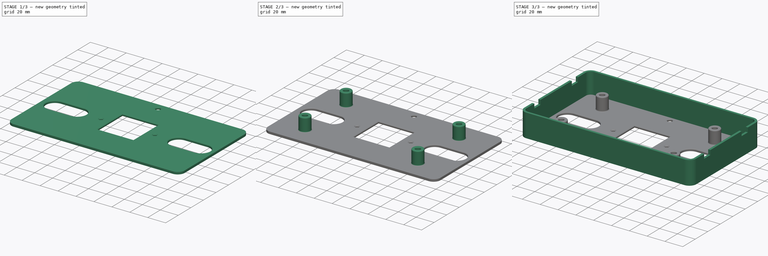
[diagram: build sequence overview — one tinted view per stage of 3, left to right]
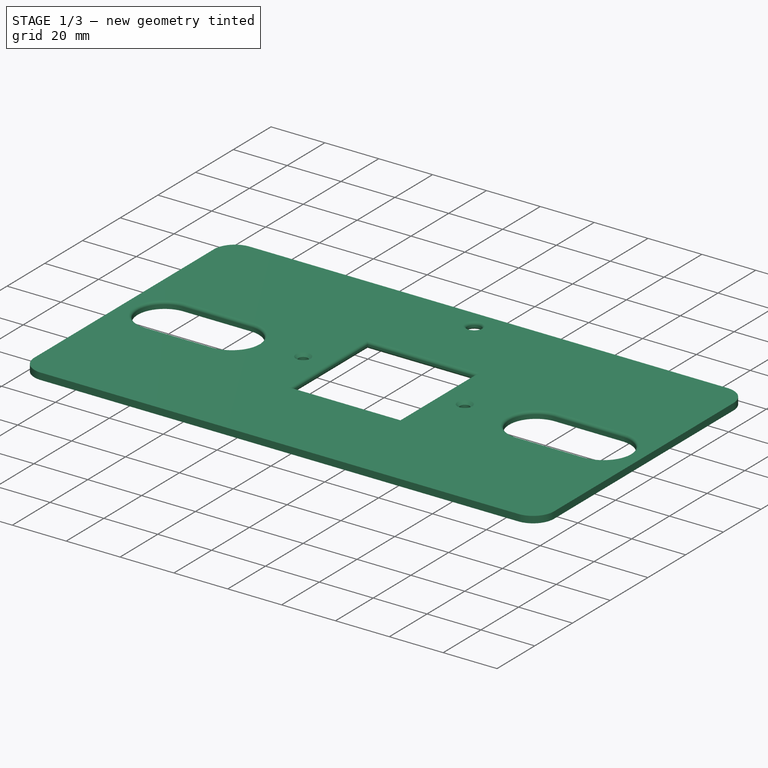
[diagram: stage 1 of 3 — iso view after this stage's code; geometry added in this stage tinted green]
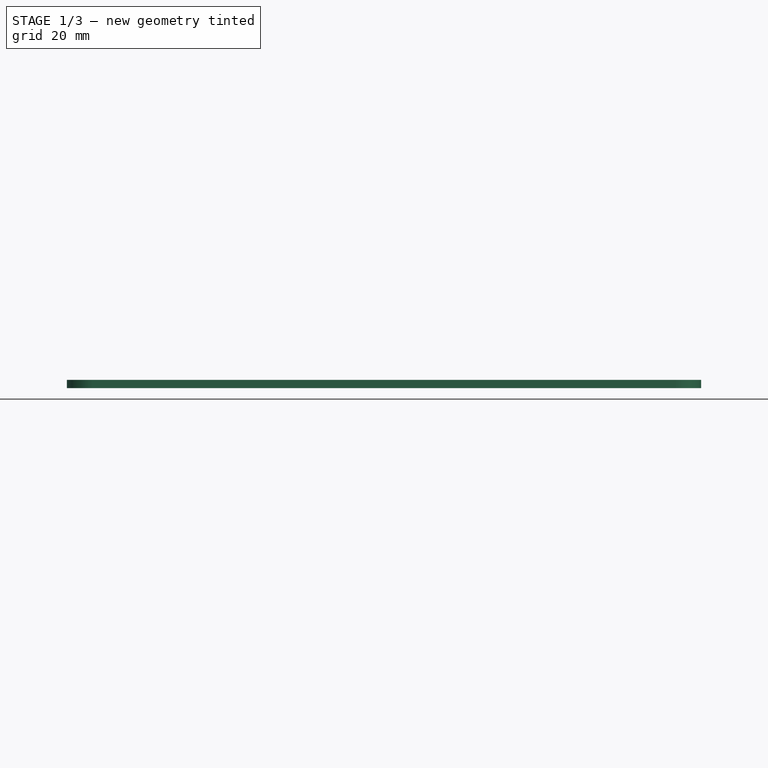
[diagram: stage 1 of 3 — front view after this stage's code; geometry added in this stage tinted green]
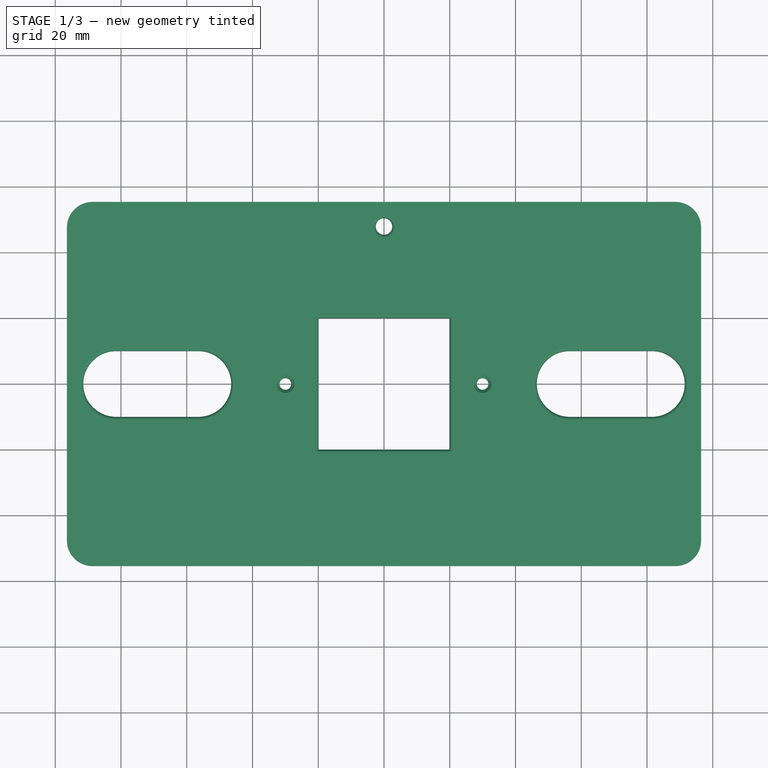
[diagram: stage 1 of 3 — top view after this stage's code; geometry added in this stage tinted green]
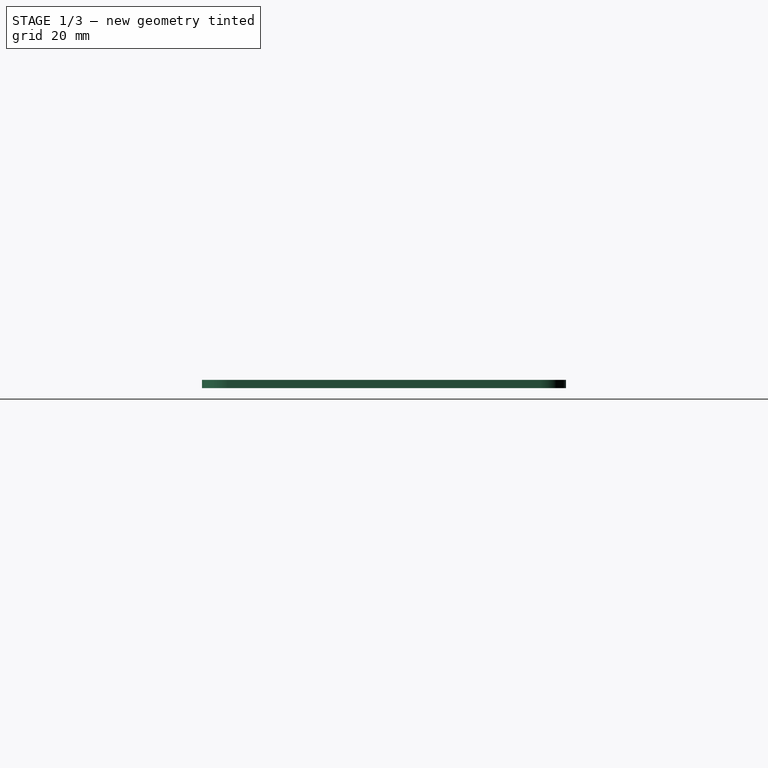
[diagram: stage 1 of 3 — right view after this stage's code; geometry added in this stage tinted green]
FCSTD DOCUMENT  (FreeCAD 1.0R39319 (Git))
Label: WaveshareTouch7Wall
License: All rights reserved
LicenseURL: https://en.wikipedia.org/wiki/All_rights_reserved
objects: Sketcher::SketchObject×5, PartDesign::Pad×3, PartDesign::Fillet×2, PartDesign::Pocket×2, PartDesign::Chamfer×1, PartDesign::Body×1
note: 35 computed .brp shape members not serialized (recipe doc carries the construction recipe); baked Part::Feature solids carry a one-line shape summary decoded from their .brp

FEATURE [Sketcher::SketchObject] Sketch  label="BasePlate"
  ArcFitTolerance = 1e-06
  AttachmentSupport = -> [XY_Plane]
  FullyConstrained = true
  MakeInternals = false
  MapMode = 5
  sketch-geometry (31):
    g0: LineSegment StartX=-96.48 StartY=47.58 StartZ=0 EndX=-96.48 EndY=-47.58 EndZ=0
    g1: LineSegment StartX=-88.68 StartY=-55.38 StartZ=0 EndX=88.68 EndY=-55.38 EndZ=0
    g2: LineSegment StartX=96.48 StartY=-47.58 StartZ=0 EndX=96.48 EndY=47.58 EndZ=0
    g3: LineSegment StartX=88.68 StartY=55.38 StartZ=0 EndX=-88.68 EndY=55.38 EndZ=0
    g4: GeomPoint [constr] X=0 Y=0 Z=0
    g5: GeomPoint [constr] X=0 Y=0 Z=0
    g6: GeomPoint [constr] X=0 Y=0 Z=0
    g7: LineSegment StartX=-20 StartY=20 StartZ=0 EndX=-20 EndY=-20 EndZ=0
    g8: LineSegment StartX=-20 StartY=-20 StartZ=0 EndX=20 EndY=-20 EndZ=0
    g9: LineSegment StartX=20 StartY=-20 StartZ=0 EndX=20 EndY=20 EndZ=0
    g10: LineSegment StartX=20 StartY=20 StartZ=0 EndX=-20 EndY=20 EndZ=0
    g11: GeomPoint [constr] X=0 Y=0 Z=0
    g12: Circle CenterX=-30 CenterY=0 CenterZ=0 NormalX=0 NormalY=0 NormalZ=1 AngleXU=0 Radius=1.75
    g13: Circle CenterX=30 CenterY=0 CenterZ=0 NormalX=0 NormalY=0 NormalZ=1 AngleXU=0 Radius=1.75
    g14: ArcOfCircle CenterX=88.68 CenterY=47.58 CenterZ=0 NormalX=0 NormalY=0 NormalZ=1 AngleXU=0 Radius=7.8 StartAngle=2e-16 EndAngle=1.5708
    g15: GeomPoint [constr] X=96.48 Y=55.38 Z=0
    g16: ArcOfCircle CenterX=88.68 CenterY=-47.58 CenterZ=0 NormalX=0 NormalY=0 NormalZ=1 AngleXU=0 Radius=7.8 StartAngle=4.71239 EndAngle=6.28319
    g17: GeomPoint [constr] X=96.48 Y=-55.38 Z=0
    g18: ArcOfCircle CenterX=-88.68 CenterY=-47.58 CenterZ=0 NormalX=0 NormalY=0 NormalZ=1 AngleXU=0 Radius=7.8 StartAngle=3.14159 EndAngle=4.71239
    g19: GeomPoint [constr] X=-96.48 Y=-55.38 Z=0
    g20: ArcOfCircle CenterX=-88.68 CenterY=47.58 CenterZ=0 NormalX=0 NormalY=0 NormalZ=1 AngleXU=0 Radius=7.8 StartAngle=1.5708 EndAngle=3.14159
    g21: GeomPoint [constr] X=-96.48 Y=55.38 Z=0
    g22: Circle CenterX=0 CenterY=47.88 CenterZ=0 NormalX=0 NormalY=0 NormalZ=1 AngleXU=0 Radius=2.5
    g23: ArcOfCircle CenterX=-81.48 CenterY=0 CenterZ=0 NormalX=0 NormalY=0 NormalZ=1 AngleXU=0 Radius=10 StartAngle=1.5708 EndAngle=4.71239
    g24: ArcOfCircle CenterX=-56.48 CenterY=0 CenterZ=0 NormalX=0 NormalY=0 NormalZ=1 AngleXU=0 Radius=10 StartAngle=4.71239 EndAngle=7.85398
    g25: LineSegment StartX=-81.48 StartY=10 StartZ=0 EndX=-56.48 EndY=10 EndZ=0
    g26: LineSegment StartX=-81.48 StartY=-10 StartZ=0 EndX=-56.48 EndY=-10 EndZ=0
    g27: ArcOfCircle CenterX=56.48 CenterY=-5e-16 CenterZ=0 NormalX=0 NormalY=0 NormalZ=1 AngleXU=0 Radius=10 StartAngle=1.5708 EndAngle=4.71239
    g28: ArcOfCircle CenterX=81.48 CenterY=0 CenterZ=0 NormalX=0 NormalY=0 NormalZ=1 AngleXU=0 Radius=10 StartAngle=4.71239 EndAngle=7.85398
    g29: LineSegment StartX=56.48 StartY=10 StartZ=0 EndX=81.48 EndY=10 EndZ=0
    g30: LineSegment StartX=56.48 StartY=-10 StartZ=0 EndX=81.48 EndY=-10 EndZ=0
  constraints (71):
    c: Vertical(g0)
    c: Vertical(g2)
    c: Horizontal(g1)
    c: Horizontal(g3)
    c: Symmetric(g17,g21,g4)
    c: Coincident(g4,g-1)
    c: DistanceX(g21,g15) = 192.96
    c: DistanceY(g17,g15) = 110.76
    c: Coincident(g5,g4)
    c: Coincident(g6,g4)
    c: Coincident(g7,g8)
    c: Coincident(g8,g9)
    c: Coincident(g9,g10)
    c: Coincident(g10,g7)
    c: Vertical(g7)
    c: Vertical(g9)
    c: Horizontal(g8)
    c: Horizontal(g10)
    c: Symmetric(g9,g7,g11)
    c: Coincident(g11,g4)
    c: DistanceX(g8,g8) = 40
    c: DistanceY(g9,g9) = 40
    c: PointOnObject(g12,g-1)
    c: PointOnObject(g13,g-1)
    c: Diameter(g13) = 3.5
    c: Diameter(g12) = 3.5
    c: Distance(g12,g-2) = 30
    c: Distance(g13,g-2) = 30
    c: PointOnObject(g15,g3)
    c: PointOnObject(g15,g2)
    c: Tangent(g3,g14) = -1.5708
    c: Tangent(g2,g14) = -1.5708
    c: PointOnObject(g17,g2)
    c: PointOnObject(g17,g1)
    c: Tangent(g2,g16) = -1.5708
    c: Tangent(g1,g16) = -1.5708
    c: PointOnObject(g19,g1)
    c: PointOnObject(g19,g0)
    c: Tangent(g1,g18) = -1.5708
    c: Tangent(g0,g18) = -1.5708
    c: PointOnObject(g21,g0)
    c: PointOnObject(g21,g3)
    c: Tangent(g0,g20) = -1.5708
    c: Tangent(g3,g20) = -1.5708
    c: Radius(g20) = 7.8
    c: Radius(g18) = 7.8
    c: Radius(g14) = 7.8
    c: Radius(g16) = 7.8
    c: PointOnObject(g22,g-2)
    c: Diameter(g22) = 5
    c: Distance(g22,g3) = 5
    c: Tangent(g23,g25) = 1.5708
    c: Tangent(g23,g26) = -1.5708
    c: Tangent(g24,g25) = 1.5708
    c: Tangent(g24,g26) = -1.5708
    c: Equal(g23,g24)
    c: Horizontal(g26)
    c: PointOnObject(g23,g-1)
    c: Tangent(g27,g29) = 1.5708
    c: Tangent(g27,g30) = -1.5708
    c: Tangent(g28,g29) = 1.5708
    c: Tangent(g28,g30) = -1.5708
    c: Equal(g27,g28)
    c: Horizontal(g30)
    c: Distance(g23,g0) = 5
    c: Distance(g28,g2) = 5
    c: DistanceX(g23,g24) = 25
    c: DistanceX(g27,g28) = 25
    c: Distance(g30,g29) = 20
    c: Distance(g26,g25) = 20
    c: PointOnObject(g28,g-1)
FEATURE [PartDesign::Pad] Pad  label="BasePlatePad"
  Direction = (0,0,1)
  Length = 2.5
  Length2 = 10
  Profile = -> Sketch
  ReferenceAxis = -> Sketch [N_Axis]
  Refine = true
  Suppressed = false
  Type = 0
FEATURE [PartDesign::Fillet] Fillet  label="BasePlateFillet"
  Base = -> Pad [Edge28,Edge31,Edge34,Edge36,Edge30,Edge27,Edge35,Edge33,Edge63,Edge62,Edge60,Edge52,Edge55,Edge58,Edge48,Edge40,Edge43,Edge46]
  BaseFeature = -> Pad
  Radius = 1
  Refine = true
  SupportTransform = false
  Suppressed = false
  UseAllEdges = false
FEATURE [PartDesign::Chamfer] Chamfer  label="BasePlateChamfer"
  Angle = 45
  Base = -> Fillet [Edge56,Edge55]
  BaseFeature = -> Fillet
  ChamferType = 0
  FlipDirection = false
  Refine = true
  Size = 1
  Size2 = 1
  SupportTransform = false
  Suppressed = false
  UseAllEdges = false
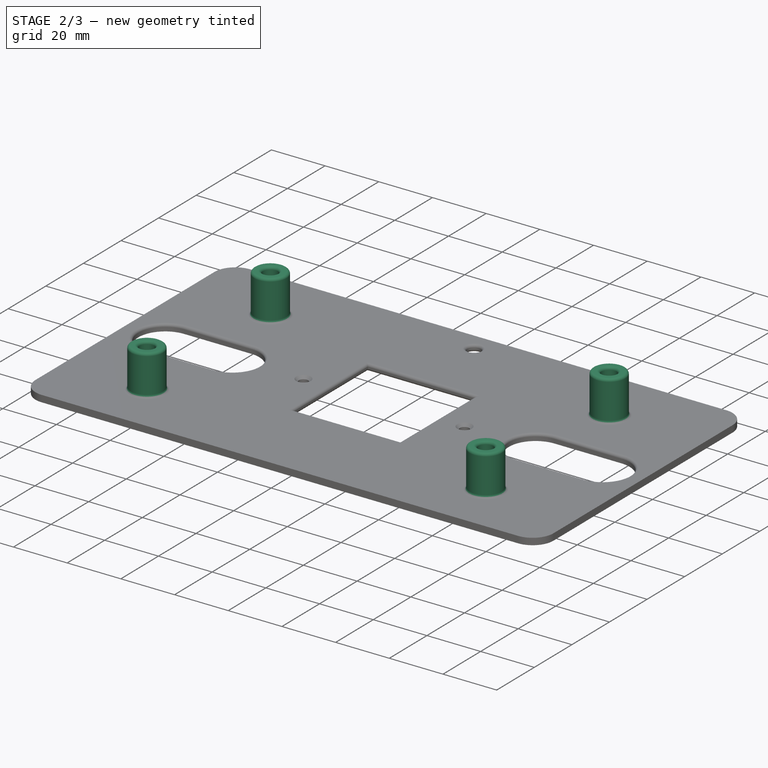
[diagram: stage 2 of 3 — iso view after this stage's code; geometry added in this stage tinted green]
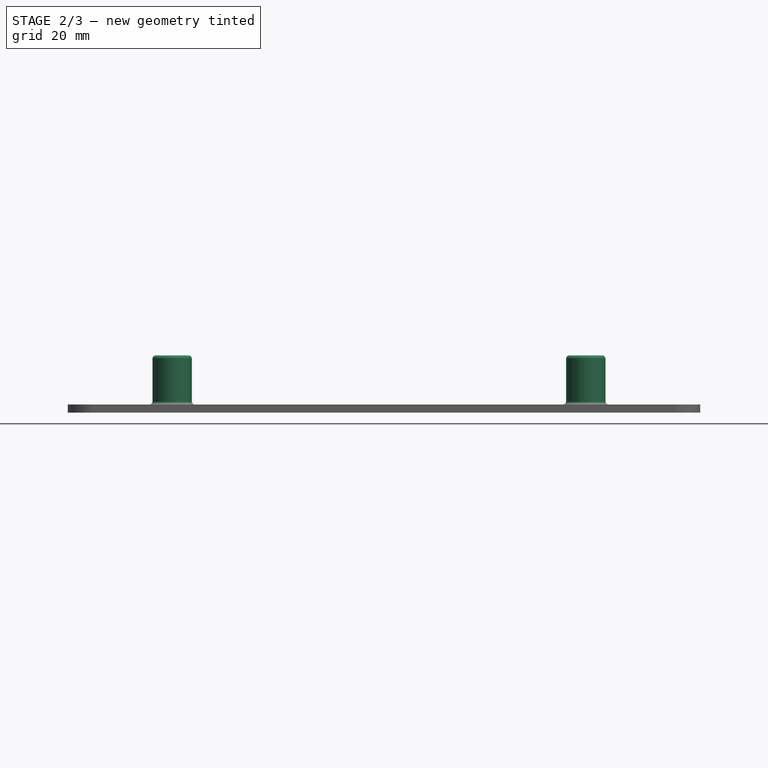
[diagram: stage 2 of 3 — front view after this stage's code; geometry added in this stage tinted green]
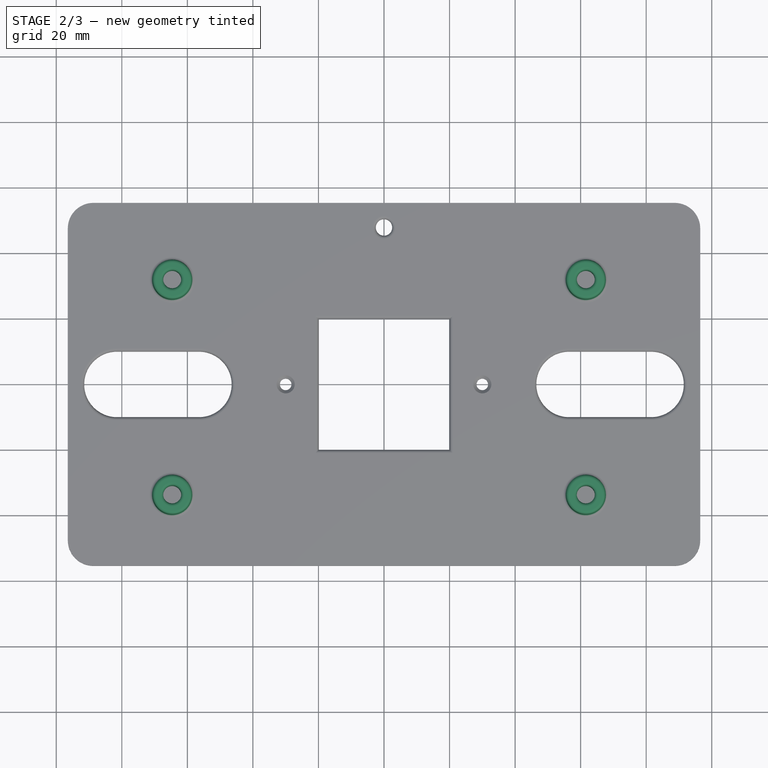
[diagram: stage 2 of 3 — top view after this stage's code; geometry added in this stage tinted green]
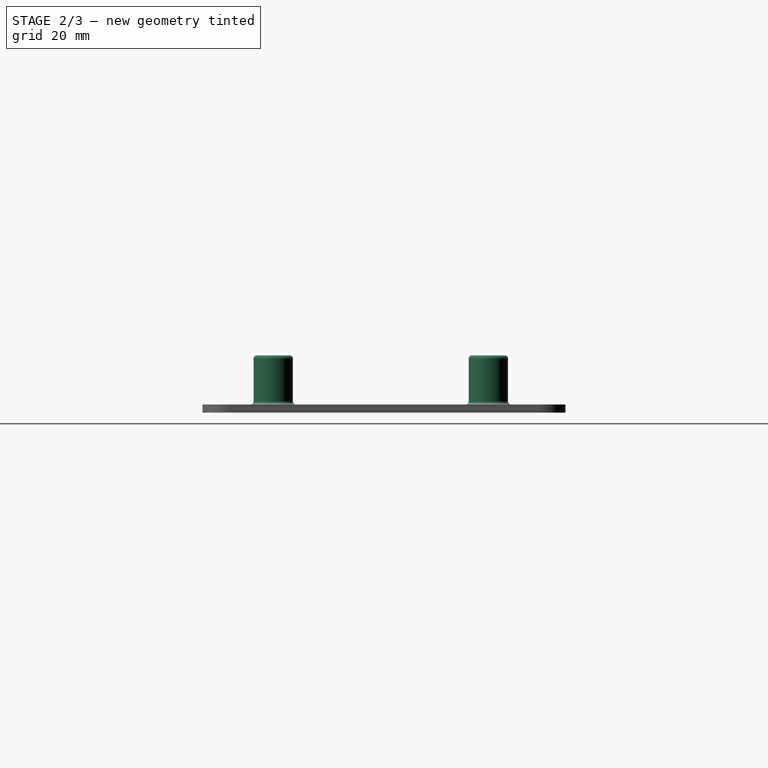
[diagram: stage 2 of 3 — right view after this stage's code; geometry added in this stage tinted green]
FEATURE [Sketcher::SketchObject] Sketch001  label="StandOffs"
  ArcFitTolerance = 1e-06
  AttachmentSupport = -> [Chamfer]
  ExternalGeometry = -> [Chamfer]
  FullyConstrained = true
  MakeInternals = false
  MapMode = 5
  Placement = pos=(0,0,2.5) rot=(0,0,1;0rad)
  sketch-geometry (12):
    g0: LineSegment [constr] StartX=-64.63 StartY=31.85 StartZ=0 EndX=-64.63 EndY=-33.8 EndZ=0
    g1: LineSegment [constr] StartX=-64.63 StartY=-33.8 StartZ=0 EndX=61.57 EndY=-33.8 EndZ=0
    g2: LineSegment [constr] StartX=61.57 StartY=-33.8 StartZ=0 EndX=61.57 EndY=31.85 EndZ=0
    g3: LineSegment [constr] StartX=61.57 StartY=31.85 StartZ=0 EndX=-64.63 EndY=31.85 EndZ=0
    g4: Circle CenterX=-64.63 CenterY=31.85 CenterZ=0 NormalX=0 NormalY=0 NormalZ=1 AngleXU=0 Radius=2.75
    g5: Circle CenterX=-64.63 CenterY=31.85 CenterZ=0 NormalX=0 NormalY=0 NormalZ=1 AngleXU=0 Radius=6
    g6: Circle CenterX=-64.63 CenterY=-33.8 CenterZ=0 NormalX=0 NormalY=0 NormalZ=1 AngleXU=0 Radius=2.75
    g7: Circle CenterX=-64.63 CenterY=-33.8 CenterZ=0 NormalX=0 NormalY=0 NormalZ=1 AngleXU=0 Radius=6
    g8: Circle CenterX=61.57 CenterY=-33.8 CenterZ=0 NormalX=0 NormalY=0 NormalZ=1 AngleXU=0 Radius=2.75
    g9: Circle CenterX=61.57 CenterY=-33.8 CenterZ=0 NormalX=0 NormalY=0 NormalZ=1 AngleXU=0 Radius=6
    g10: Circle CenterX=61.57 CenterY=31.85 CenterZ=0 NormalX=0 NormalY=0 NormalZ=1 AngleXU=0 Radius=2.75
    g11: Circle CenterX=61.57 CenterY=31.85 CenterZ=0 NormalX=0 NormalY=0 NormalZ=1 AngleXU=0 Radius=6
  constraints (28):
    c: Coincident(g0,g1)
    c: Coincident(g1,g2)
    c: Coincident(g2,g3)
    c: Coincident(g3,g0)
    c: Vertical(g0)
    c: Vertical(g2)
    c: Horizontal(g1)
    c: Horizontal(g3)
    c: DistanceX(g3,g3) = 126.2
    c: DistanceY(g2,g2) = 65.65
    c: Coincident(g4,g0)
    c: Coincident(g5,g0)
    c: Coincident(g6,g0)
    c: Coincident(g7,g0)
    c: Coincident(g8,g1)
    c: Coincident(g9,g1)
    c: Coincident(g10,g2)
    c: Coincident(g11,g2)
    c: Diameter(g4) = 5.5
    c: Diameter(g6) = 5.5
    c: Diameter(g8) = 5.5
    c: Diameter(g10) = 5.5
    c: Diameter(g5) = 12
    c: Diameter(g11) = 12
    c: Diameter(g9) = 12
    c: Diameter(g7) = 12
    c: Distance(g-5,g1) = 21.58
    c: Distance(g-6,g0) = 31.85
FEATURE [PartDesign::Pad] Pad001  label="StandOffsPad"
  BaseFeature = -> Chamfer
  Direction = (0,0,1)
  Length = 15
  Length2 = 10
  Profile = -> Sketch001
  ReferenceAxis = -> Sketch001 [N_Axis]
  Refine = true
  Suppressed = false
  Type = 0
FEATURE [PartDesign::Fillet] Fillet001  label="StandOffsFillet"
  Base = -> Pad001 [Edge97,Edge117,Edge103,Edge120,Edge81,Edge57,Edge45,Edge77,Edge25,Edge9,Edge15,Edge27]
  BaseFeature = -> Pad001
  Radius = 1
  Refine = true
  SupportTransform = false
  Suppressed = false
  UseAllEdges = false
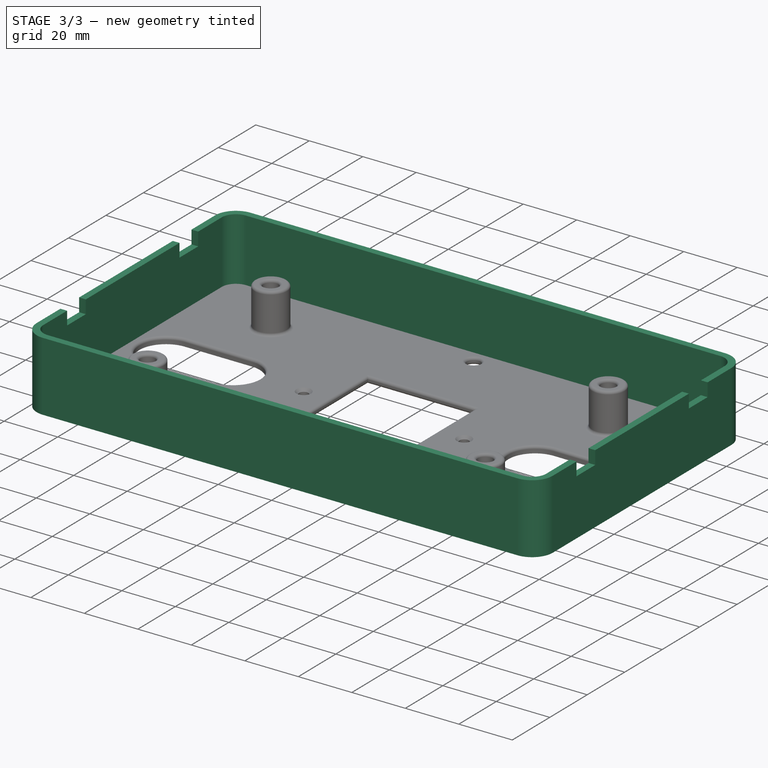
[diagram: stage 3 of 3 — iso view after this stage's code; geometry added in this stage tinted green]
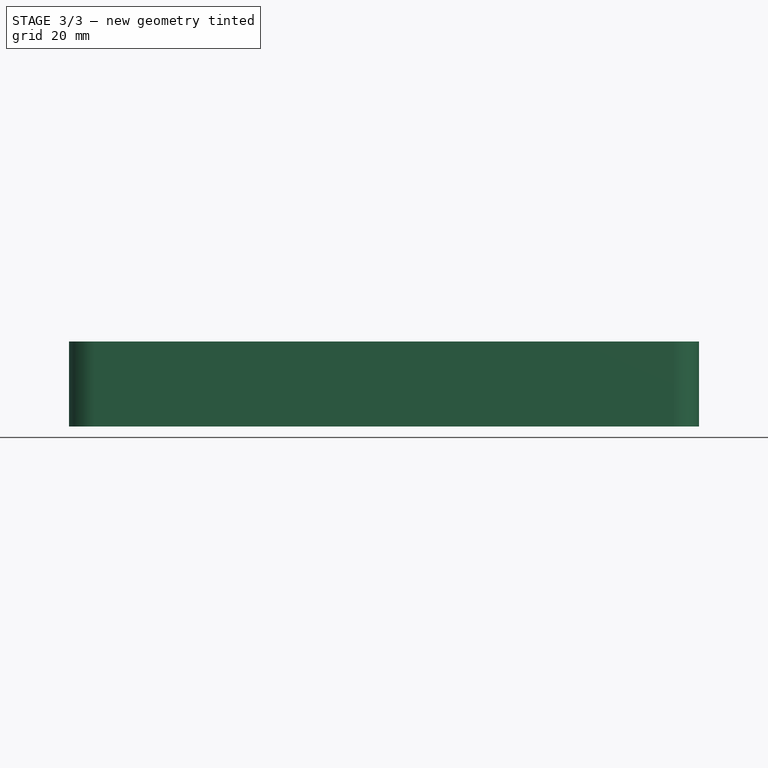
[diagram: stage 3 of 3 — front view after this stage's code; geometry added in this stage tinted green]
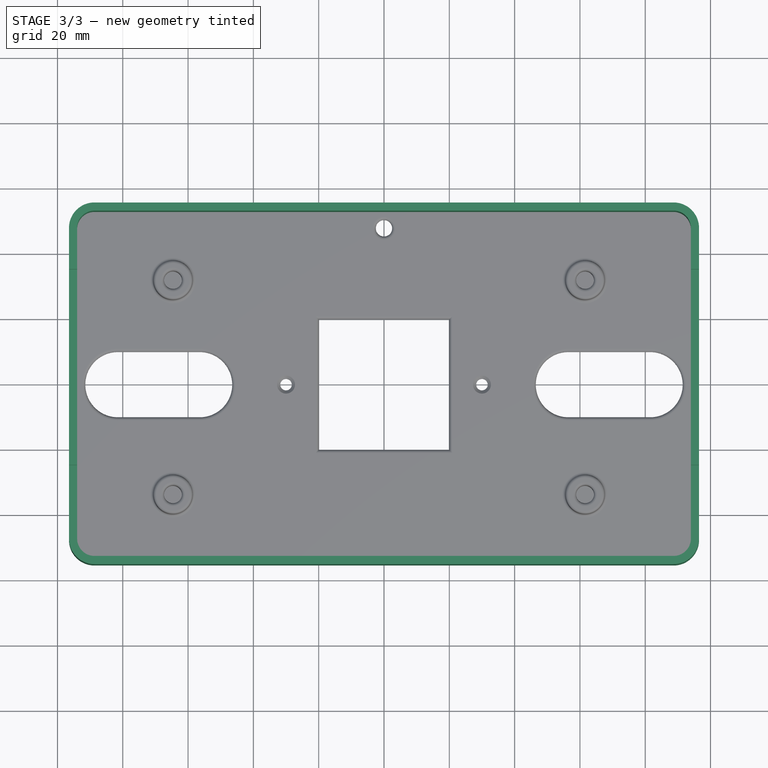
[diagram: stage 3 of 3 — top view after this stage's code; geometry added in this stage tinted green]
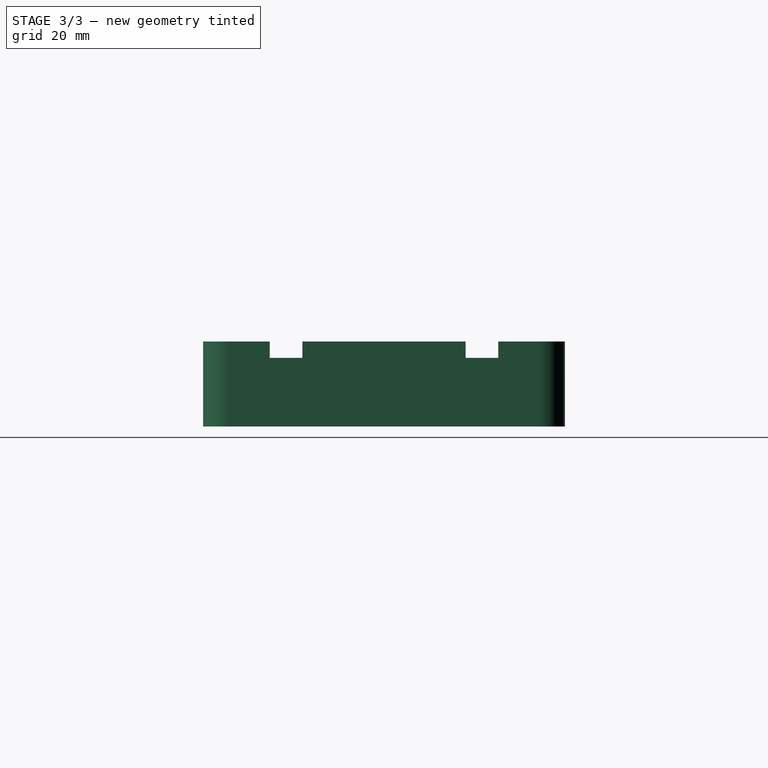
[diagram: stage 3 of 3 — right view after this stage's code; geometry added in this stage tinted green]
FEATURE [Sketcher::SketchObject] Sketch002  label="SideWalls"
  ArcFitTolerance = 1e-06
  FullyConstrained = true
  MakeInternals = false
  MapMode = 5
  Placement = pos=(0,0,2.5) rot=(0,0,1;0rad)
  sketch-geometry (26):
    g0: LineSegment StartX=-96.48 StartY=47.58 StartZ=0 EndX=-96.48 EndY=-47.58 EndZ=0
    g1: LineSegment StartX=-88.68 StartY=-55.38 StartZ=0 EndX=88.68 EndY=-55.38 EndZ=0
    g2: LineSegment StartX=96.48 StartY=-47.58 StartZ=0 EndX=96.48 EndY=47.58 EndZ=0
    g3: LineSegment StartX=88.68 StartY=55.38 StartZ=0 EndX=-88.68 EndY=55.38 EndZ=0
    g4: GeomPoint [constr] X=0 Y=0 Z=0
    g5: LineSegment StartX=-93.98 StartY=47.58 StartZ=0 EndX=-93.98 EndY=-47.58 EndZ=0
    g6: LineSegment StartX=-88.68 StartY=-52.88 StartZ=0 EndX=88.68 EndY=-52.88 EndZ=0
    g7: LineSegment StartX=93.98 StartY=-47.58 StartZ=0 EndX=93.98 EndY=47.58 EndZ=0
    g8: LineSegment StartX=88.68 StartY=52.88 StartZ=0 EndX=-88.68 EndY=52.88 EndZ=0
    g9: GeomPoint [constr] X=0 Y=0 Z=0
    g10: ArcOfCircle CenterX=-88.68 CenterY=47.58 CenterZ=0 NormalX=0 NormalY=0 NormalZ=1 AngleXU=0 Radius=5.3 StartAngle=1.5708 EndAngle=3.14159
    g11: GeomPoint [constr] X=-93.98 Y=52.88 Z=0
    g12: ArcOfCircle CenterX=88.68 CenterY=47.58 CenterZ=0 NormalX=0 NormalY=0 NormalZ=1 AngleXU=0 Radius=5.3 StartAngle=2e-16 EndAngle=1.5708
    g13: GeomPoint [constr] X=93.98 Y=52.88 Z=0
    g14: ArcOfCircle CenterX=88.68 CenterY=-47.58 CenterZ=0 NormalX=0 NormalY=0 NormalZ=1 AngleXU=0 Radius=5.3 StartAngle=4.71239 EndAngle=6.28319
    g15: GeomPoint [constr] X=93.98 Y=-52.88 Z=0
    g16: ArcOfCircle CenterX=-88.68 CenterY=-47.58 CenterZ=0 NormalX=0 NormalY=0 NormalZ=1 AngleXU=0 Radius=5.3 StartAngle=3.14159 EndAngle=4.71239
    g17: GeomPoint [constr] X=-93.98 Y=-52.88 Z=0
    g18: ArcOfCircle CenterX=-88.68 CenterY=-47.58 CenterZ=0 NormalX=0 NormalY=0 NormalZ=1 AngleXU=0 Radius=7.8 StartAngle=3.14159 EndAngle=4.71239
    g19: GeomPoint [constr] X=-96.48 Y=-55.38 Z=0
    g20: ArcOfCircle CenterX=-88.68 CenterY=47.58 CenterZ=0 NormalX=0 NormalY=0 NormalZ=1 AngleXU=0 Radius=7.8 StartAngle=1.5708 EndAngle=3.14159
    g21: GeomPoint [constr] X=-96.48 Y=55.38 Z=0
    g22: ArcOfCircle CenterX=88.68 CenterY=47.58 CenterZ=0 NormalX=0 NormalY=0 NormalZ=1 AngleXU=0 Radius=7.8 StartAngle=5e-16 EndAngle=1.5708
    g23: GeomPoint [constr] X=96.48 Y=55.38 Z=0
    g24: ArcOfCircle CenterX=88.68 CenterY=-47.58 CenterZ=0 NormalX=0 NormalY=0 NormalZ=1 AngleXU=0 Radius=7.8 StartAngle=4.71239 EndAngle=6.28319
    g25: GeomPoint [constr] X=96.48 Y=-55.38 Z=0
  constraints (56):
    c: Vertical(g0)
    c: Vertical(g2)
    c: Horizontal(g1)
    c: Horizontal(g3)
    c: Symmetric(g25,g21,g4)
    c: Coincident(g4,g-1)
    c: Vertical(g5)
    c: Vertical(g7)
    c: Horizontal(g6)
    c: Horizontal(g8)
    c: Symmetric(g15,g11,g9)
    c: Coincident(g9,g4)
    c: DistanceX(g21,g23) = 192.96
    c: DistanceY(g19,g21) = 110.76
    c: Distance(g21,g5) = 2.5
    c: Distance(g23,g8) = 2.5
    c: PointOnObject(g11,g5)
    c: PointOnObject(g11,g8)
    c: Tangent(g5,g10) = -1.5708
    c: Tangent(g8,g10) = -1.5708
    c: PointOnObject(g13,g8)
    c: PointOnObject(g13,g7)
    c: Tangent(g8,g12) = -1.5708
    c: Tangent(g7,g12) = -1.5708
    c: PointOnObject(g15,g7)
    c: PointOnObject(g15,g6)
    c: Tangent(g7,g14) = -1.5708
    c: Tangent(g6,g14) = -1.5708
    c: PointOnObject(g17,g6)
    c: PointOnObject(g17,g5)
    c: Tangent(g6,g16) = -1.5708
    c: Tangent(g5,g16) = -1.5708
    c: PointOnObject(g19,g0)
    c: PointOnObject(g19,g1)
    c: Tangent(g0,g18) = -1.5708
    c: Tangent(g1,g18) = -1.5708
    c: PointOnObject(g21,g0)
    c: PointOnObject(g21,g3)
    c: Tangent(g0,g20) = -1.5708
    c: Tangent(g3,g20) = -1.5708
    c: PointOnObject(g23,g3)
    c: PointOnObject(g23,g2)
    c: Tangent(g3,g22) = -1.5708
    c: Tangent(g2,g22) = -1.5708
    c: PointOnObject(g25,g2)
    c: PointOnObject(g25,g1)
    c: Tangent(g2,g24) = -1.5708
    c: Tangent(g1,g24) = -1.5708
    c: Radius(g18) = 7.8
    c: Radius(g20) = 7.8
    c: Radius(g22) = 7.8
    c: Radius(g24) = 7.8
    c: Radius(g16) = 5.3
    c: Radius(g10) = 5.3
    c: Radius(g12) = 5.3
    c: Radius(g14) = 5.3
FEATURE [PartDesign::Pad] Pad002  label="SideWallsPad"
  BaseFeature = -> Fillet001
  Direction = (0,0,1)
  Length = 23.5
  Length2 = 10
  Profile = -> Sketch002
  ReferenceAxis = -> Sketch002 [N_Axis]
  Refine = true
  Suppressed = false
  Type = 0
FEATURE [Sketcher::SketchObject] Sketch003  label="LeftRelease"
  ArcFitTolerance = 1e-06
  AttachmentSupport = -> [Pad002]
  ExternalGeometry = -> [Pad002]
  FullyConstrained = true
  MakeInternals = false
  MapMode = 5
  Placement = pos=(-96.48,0,4.51e-14) rot=(0.57735,-0.57735,-0.57735;2.0944rad)
  sketch-geometry (8):
    g0: LineSegment StartX=25 StartY=26 StartZ=0 EndX=25 EndY=21 EndZ=0
    g1: LineSegment StartX=25 StartY=21 StartZ=0 EndX=35 EndY=21 EndZ=0
    g2: LineSegment StartX=35 StartY=21 StartZ=0 EndX=35 EndY=26 EndZ=0
    g3: LineSegment StartX=35 StartY=26 StartZ=0 EndX=25 EndY=26 EndZ=0
    g4: LineSegment StartX=-35 StartY=26 StartZ=0 EndX=-35 EndY=21 EndZ=0
    g5: LineSegment StartX=-35 StartY=21 StartZ=0 EndX=-25 EndY=21 EndZ=0
    g6: LineSegment StartX=-25 StartY=21 StartZ=0 EndX=-25 EndY=26 EndZ=0
    g7: LineSegment StartX=-25 StartY=26 StartZ=0 EndX=-35 EndY=26 EndZ=0
  constraints (24):
    c: Coincident(g0,g1)
    c: Coincident(g1,g2)
    c: Coincident(g2,g3)
    c: Coincident(g3,g0)
    c: Vertical(g0)
    c: Vertical(g2)
    c: Horizontal(g1)
    c: Horizontal(g3)
    c: Coincident(g4,g5)
    c: Coincident(g5,g6)
    c: Coincident(g6,g7)
    c: Coincident(g7,g4)
    c: Vertical(g4)
    c: Vertical(g6)
    c: Horizontal(g5)
    c: Horizontal(g7)
    c: PointOnObject(g6,g-3)
    c: PointOnObject(g0,g-3)
    c: DistanceY(g4,g4) = 5
    c: DistanceY(g2,g2) = 5
    c: DistanceX(g1,g1) = 10
    c: DistanceX(g5,g5) = 10
    c: Distance(g-2,g6) = 25
    c: Distance(g-2,g0) = 25
FEATURE [PartDesign::Pocket] Pocket  label="LeftReleasePocket"
  BaseFeature = -> Pad002
  Direction = (1,0,0)
  Length = 5
  Length2 = 5
  Profile = -> Sketch003
  ReferenceAxis = -> Sketch003 [N_Axis]
  Refine = true
  Suppressed = false
  Type = 2
FEATURE [Sketcher::SketchObject] Sketch004  label="RightRelease"
  ArcFitTolerance = 1e-06
  AttachmentSupport = -> [Pocket]
  ExternalGeometry = -> [Pocket]
  FullyConstrained = true
  MakeInternals = false
  MapMode = 5
  Placement = pos=(96.48,0,0) rot=(0.57735,0.57735,0.57735;2.0944rad)
  sketch-geometry (8):
    g0: LineSegment StartX=-35 StartY=26 StartZ=0 EndX=-35 EndY=21 EndZ=0
    g1: LineSegment StartX=-35 StartY=21 StartZ=0 EndX=-25 EndY=21 EndZ=0
    g2: LineSegment StartX=-25 StartY=21 StartZ=0 EndX=-25 EndY=26 EndZ=0
    g3: LineSegment StartX=-25 StartY=26 StartZ=0 EndX=-35 EndY=26 EndZ=0
    g4: LineSegment StartX=25 StartY=26 StartZ=0 EndX=25 EndY=21 EndZ=0
    g5: LineSegment StartX=25 StartY=21 StartZ=0 EndX=35 EndY=21 EndZ=0
    g6: LineSegment StartX=35 StartY=21 StartZ=0 EndX=35 EndY=26 EndZ=0
    g7: LineSegment StartX=35 StartY=26 StartZ=0 EndX=25 EndY=26 EndZ=0
  constraints (24):
    c: Coincident(g0,g1)
    c: Coincident(g1,g2)
    c: Coincident(g2,g3)
    c: Coincident(g3,g0)
    c: Vertical(g0)
    c: Vertical(g2)
    c: Horizontal(g1)
    c: Horizontal(g3)
    c: Coincident(g4,g5)
    c: Coincident(g5,g6)
    c: Coincident(g6,g7)
    c: Coincident(g7,g4)
    c: Vertical(g4)
    c: Vertical(g6)
    c: Horizontal(g5)
    c: Horizontal(g7)
    c: PointOnObject(g6,g-3)
    c: PointOnObject(g0,g-3)
    c: DistanceY(g0,g0) = 5
    c: DistanceY(g6,g6) = 5
    c: DistanceX(g5,g5) = 10
    c: DistanceX(g1,g1) = 10
    c: Distance(g-2,g2) = 25
    c: Distance(g4,g-2) = 25
FEATURE [PartDesign::Pocket] Pocket001  label="RightReleasePocket"
  BaseFeature = -> Pocket
  Direction = (-1,0,0)
  Length = 5
  Length2 = 5
  Profile = -> Sketch004
  ReferenceAxis = -> Sketch004 [N_Axis]
  Refine = true
  Suppressed = false
  Type = 2
FEATURE [PartDesign::Body] Body  label="Plate"
  AllowCompound = false
  Group = -> [Sketch,Pad,Fillet,Chamfer,Sketch001,Pad001,Fillet001,Sketch002,Pad002,Sketch003,Pocket,Sketch004,Pocket001]
  Origin = -> Origin
  Tip = -> Pocket001
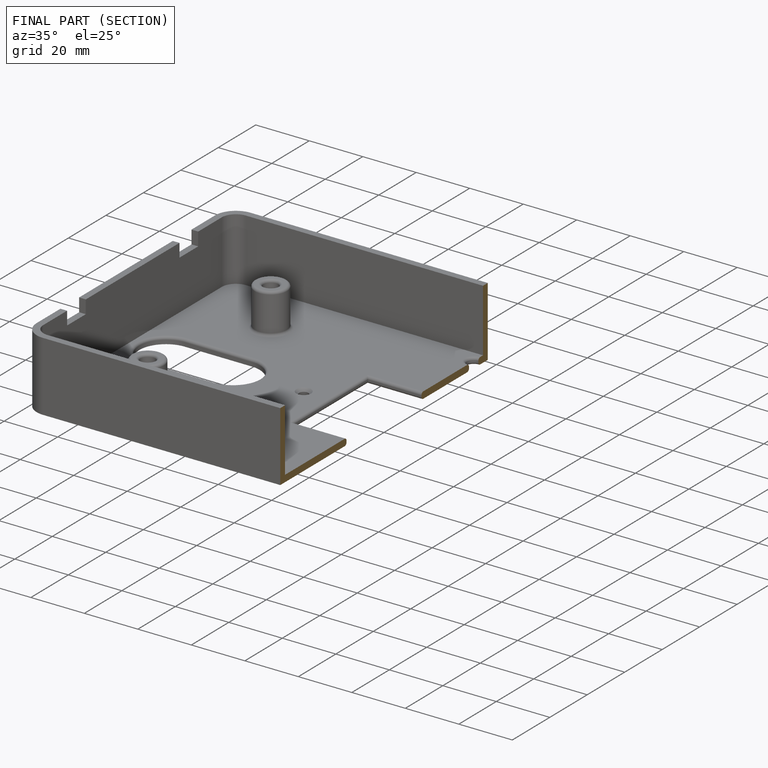
[diagram: finished part — half-section view (interior)]
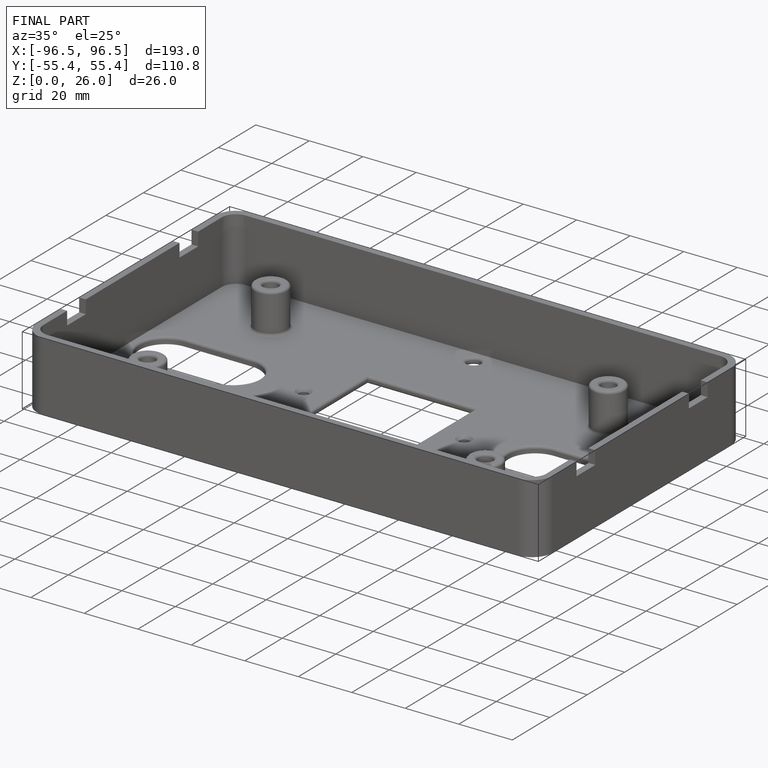
[diagram: finished part — iso view with bounding-box wireframe]
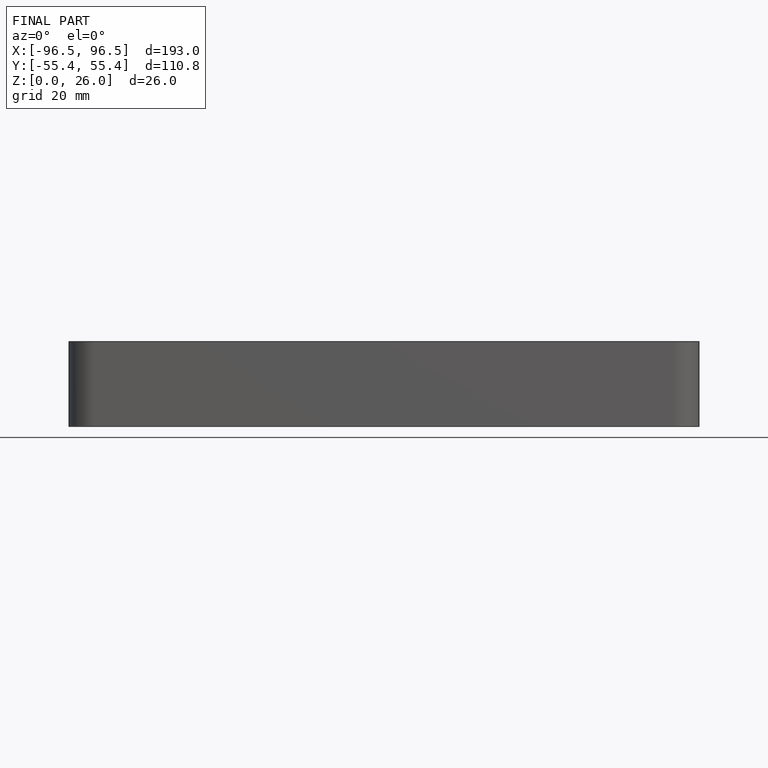
[diagram: finished part — front view with bounding-box wireframe]
